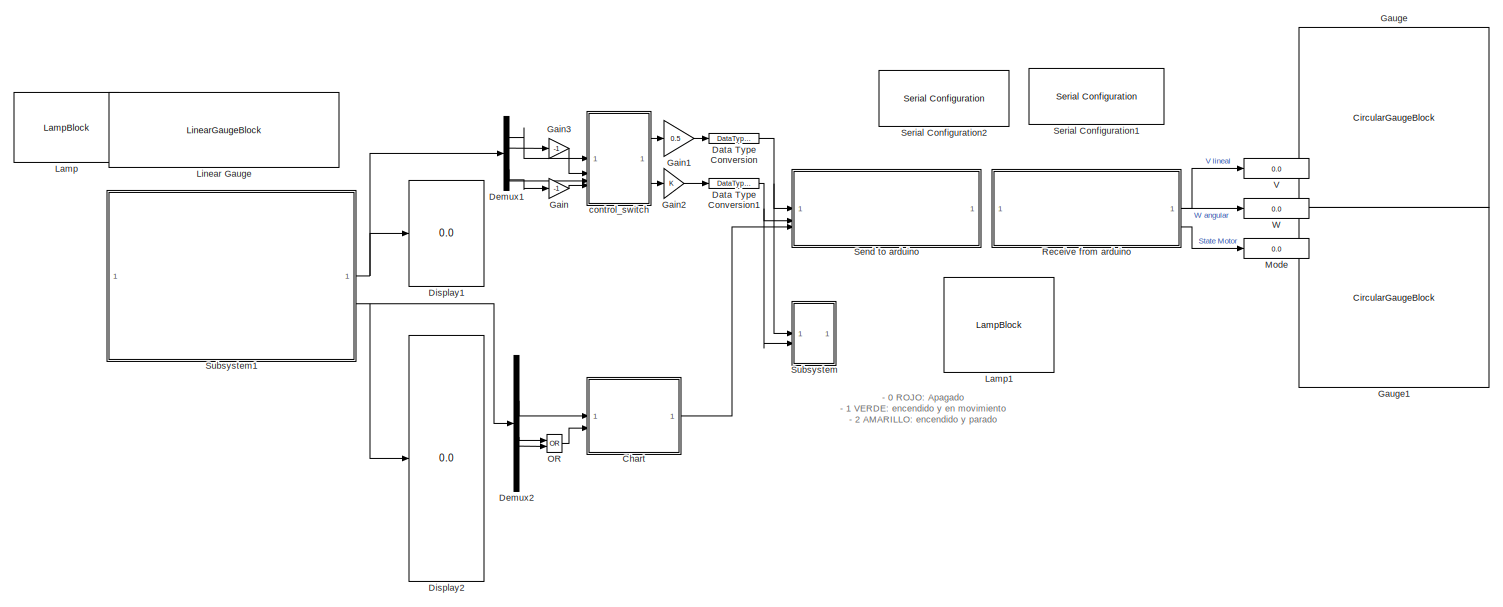
[diagram: root canvas - part 1/2, full width, top band]
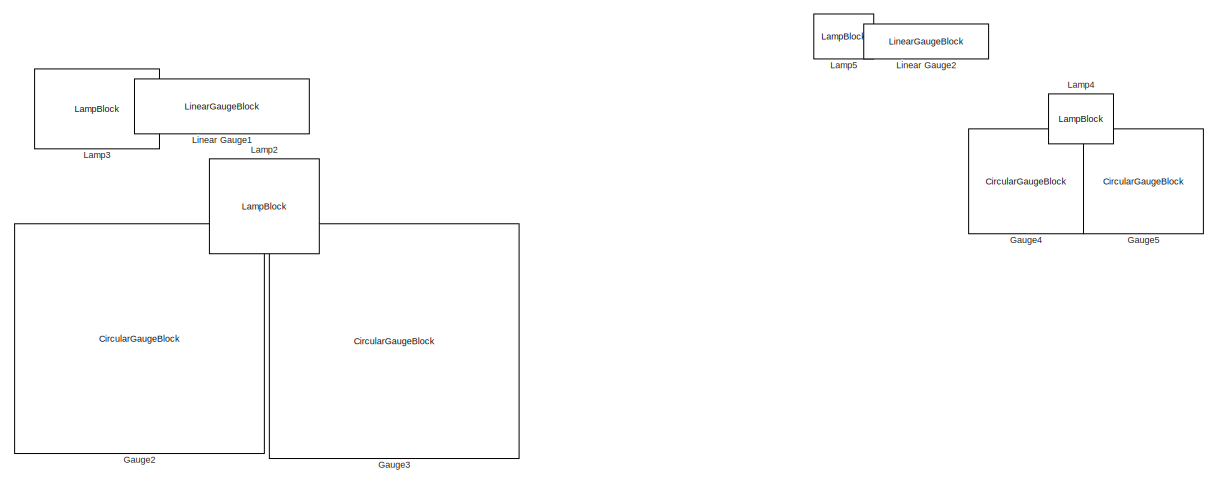
[diagram: root canvas - part 2/2, bottom right region]
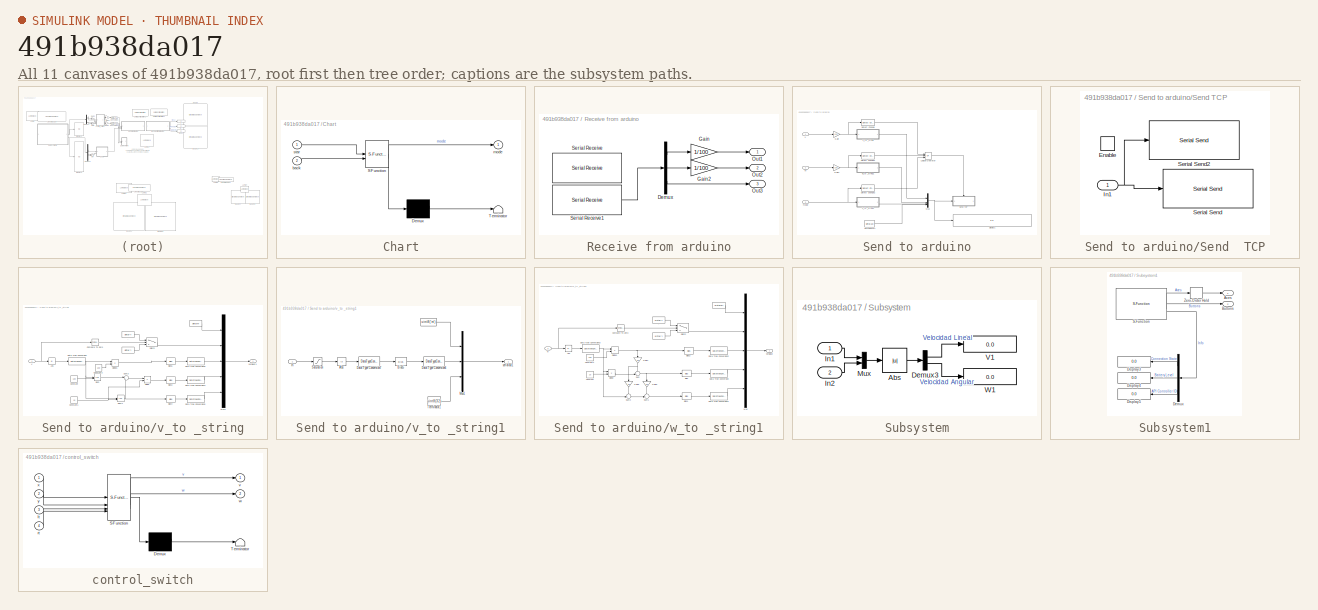
[diagram: thumbnail index - all 11 canvases of the model, root first then tree order]
MODEL slx_491b938da017
KIND model
CONFIG AbsTol = auto
CONFIG EnableMultiTasking = off
CONFIG FixedStep = 0.01
CONFIG InitFcn = Ts=0.01;
CONFIG MaxStep = 0.01
CONFIG MinStep = auto
CONFIG RelTol = 1e-3
CONFIG SampleTimeConstraint = Unconstrained
CONFIG SolverName = FixedStepDiscrete
CONFIG StartTime = 0.0
CONFIG StopTime = inf
BLOCK [SubSystem] Chart
  ErrorFcn = Stateflow.Translate.translate
  PermitHierarchicalResolution = ExplicitOnly
  SFBlockType = Chart
  TreatAsAtomicUnit = on
BLOCK [Demux] Chart/ Demux 
  Outputs = 1
BLOCK [S-Function] Chart/ SFunction 
  EnableBusSupport = on
  FunctionName = sf_sfun
  PortCounts = [2 2]
  SFcnIsStateOwnerBlock = off
  SFunctionDeploymentMode = off
  Tag = Stateflow S-Function 1
BLOCK [Terminator] Chart/ Terminator 
BLOCK [Inport] Chart/back
  Port = 2
BLOCK [Outport] Chart/mode
BLOCK [Inport] Chart/star
BLOCK [DataTypeConversion] Data Type Conversion
  OutDataTypeStr = single
  RndMeth = Floor
  SaturateOnIntegerOverflow = off
BLOCK [DataTypeConversion] Data Type Conversion1
  OutDataTypeStr = single
  RndMeth = Floor
  SaturateOnIntegerOverflow = off
BLOCK [Demux] Demux1
  Outputs = 6
BLOCK [Demux] Demux2
  Outputs = 14
BLOCK [Display] Display1
  Decimation = 1
BLOCK [Display] Display2
  Decimation = 1
BLOCK [Gain] Gain
  Gain = -1
BLOCK [Gain] Gain1
  Gain = 0.5
BLOCK [Gain] Gain2
BLOCK [Gain] Gain3
  Gain = -1
BLOCK [CircularGaugeBlock] Gauge
  ScaleMax = 2
BLOCK [CircularGaugeBlock] Gauge1
  ScaleMax = 1.2
BLOCK [CircularGaugeBlock] Gauge2
  ScaleMax = 2
BLOCK [CircularGaugeBlock] Gauge3
  ScaleMax = 1.2
BLOCK [CircularGaugeBlock] Gauge4
  ScaleMax = 2
BLOCK [CircularGaugeBlock] Gauge5
  ScaleMax = 1.2
BLOCK [LampBlock] Lamp
BLOCK [LampBlock] Lamp1
BLOCK [LampBlock] Lamp2
BLOCK [LampBlock] Lamp3
BLOCK [LampBlock] Lamp4
BLOCK [LampBlock] Lamp5
BLOCK [LinearGaugeBlock] Linear Gauge
  TickInterval = 25
BLOCK [LinearGaugeBlock] Linear Gauge1
  TickInterval = 25
BLOCK [LinearGaugeBlock] Linear Gauge2
  TickInterval = 25
BLOCK [Display] Mode
  Decimation = 1
BLOCK [Logic] OR
  AllPortsSameDT = off
  IconShape = distinctive
  Operator = OR
  OutDataTypeStr = boolean
BLOCK [SubSystem] Receive from arduino
BLOCK [Demux] Receive from arduino/Demux
  Outputs = 3
BLOCK [Gain] Receive from arduino/Gain
  Gain = 1/100
BLOCK [Gain] Receive from arduino/Gain2
  Gain = 1/100
BLOCK [Outport] Receive from arduino/Out1
BLOCK [Outport] Receive from arduino/Out2
  Port = 2
BLOCK [Outport] Receive from arduino/Out3
  Port = 3
BLOCK [Reference] Receive from arduino/Serial Receive  REF=instrumentseriallib/Serial Receive
  Commented = on
  LibrarySourceBlock = instrumentlib/Serial Receive
  SourceBlock = instrumentseriallib/Serial Receive
  SourceType = system.SerialReceive
BLOCK [Reference] Receive from arduino/Serial Receive1  REF=instrumentseriallib/Serial Receive
  LibrarySourceBlock = instrumentlib/Serial Receive
  SourceBlock = instrumentseriallib/Serial Receive
  SourceType = system.SerialReceive
BLOCK [SubSystem] Send to arduino
BLOCK [Reference] Send to arduino/Detect Change  REF=simulink/Logic and Bit
Operations/Detect
Change
  SourceBlock = simulink/Logic and Bit\nOperations/Detect\nChange
  SourceType = Detect Change
BLOCK [Reference] Send to arduino/Detect Change1  REF=simulink/Logic and Bit
Operations/Detect
Change
  SourceBlock = simulink/Logic and Bit\nOperations/Detect\nChange
  SourceType = Detect Change
BLOCK [Reference] Send to arduino/Detect Change2  REF=simulink/Logic and Bit
Operations/Detect
Change
  SourceBlock = simulink/Logic and Bit\nOperations/Detect\nChange
  SourceType = Detect Change
BLOCK [Display] Send to arduino/Display1
  Decimation = 1
BLOCK [Gain] Send to arduino/Gain
  Gain = 100
BLOCK [Gain] Send to arduino/Gain1
  Gain = 100
BLOCK [Logic] Send to arduino/Logical Operator
  AllPortsSameDT = off
  Inputs = 3
  Operator = OR
  OutDataTypeStr = boolean
BLOCK [Mux] Send to arduino/Mux
  DisplayOption = bar
BLOCK [SubSystem] Send to arduino/Send  TCP
  TreatAsAtomicUnit = on
BLOCK [EnablePort] Send to arduino/Send  TCP/Enable
BLOCK [Inport] Send to arduino/Send  TCP/In1
BLOCK [Reference] Send to arduino/Send  TCP/Serial Send  REF=instrumentseriallib/Serial Send
  Commented = on
  LibrarySourceBlock = instrumentlib/Serial Send
  SourceBlock = instrumentseriallib/Serial Send
  SourceType = system.SerialSend
BLOCK [Reference] Send to arduino/Send  TCP/Serial Send2  REF=instrumentseriallib/Serial Send
  LibrarySourceBlock = instrumentlib/Serial Send
  SourceBlock = instrumentseriallib/Serial Send
  SourceType = system.SerialSend
BLOCK [Constant] Send to arduino/Terminator1
  Value = uint8(10)
BLOCK [Inport] Send to arduino/V
BLOCK [Inport] Send to arduino/W
  Port = 2
BLOCK [Inport] Send to arduino/mode
  Port = 3
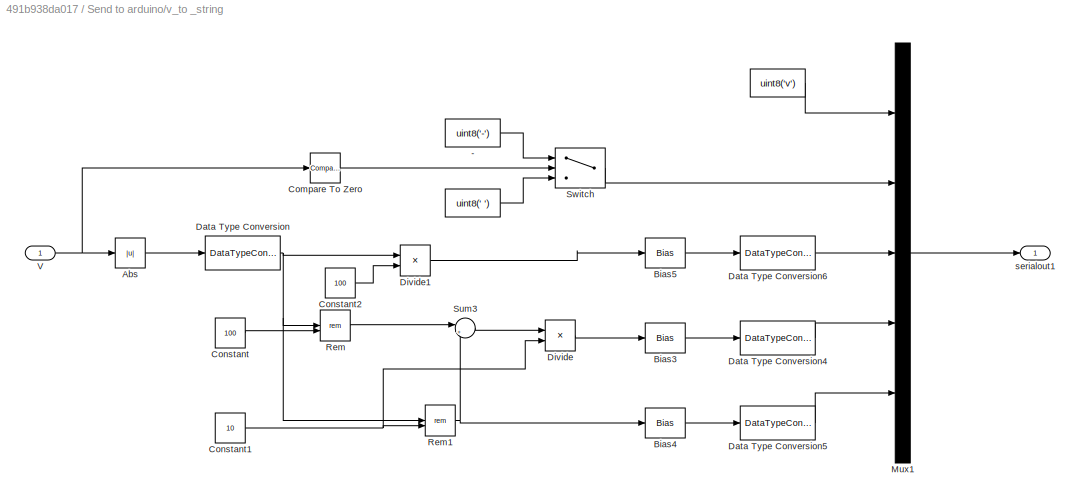
BLOCK [SubSystem] Send to arduino/v_to _string
BLOCK [Constant] Send to arduino/v_to _string/     
  NameLocation = top
  Value = uint8(' ')
BLOCK [Constant] Send to arduino/v_to _string/       
  NameLocation = top
  Value = uint8('v')
BLOCK [Constant] Send to arduino/v_to _string/  -
  NameLocation = top
  Value = uint8('-')
BLOCK [Abs] Send to arduino/v_to _string/Abs
  SaturateOnIntegerOverflow = off
BLOCK [Bias] Send to arduino/v_to _string/Bias3
  Bias = 48
  SaturateOnIntegerOverflow = off
BLOCK [Bias] Send to arduino/v_to _string/Bias4
  Bias = 48
  SaturateOnIntegerOverflow = off
BLOCK [Bias] Send to arduino/v_to _string/Bias5
  Bias = 48
  SaturateOnIntegerOverflow = off
BLOCK [Reference] Send to arduino/v_to _string/Compare To Zero  REF=simulink/Logic and Bit
Operations/Compare
To Zero
  SourceBlock = simulink/Logic and Bit\nOperations/Compare\nTo Zero
  SourceType = Compare To Zero
BLOCK [Constant] Send to arduino/v_to _string/Constant
  OutDataTypeStr = uint16
  Value = 100
BLOCK [Constant] Send to arduino/v_to _string/Constant1
  OutDataTypeStr = uint16
  Value = 10
BLOCK [Constant] Send to arduino/v_to _string/Constant2
  OutDataTypeStr = uint16
  Value = 100
BLOCK [DataTypeConversion] Send to arduino/v_to _string/Data Type Conversion
  OutDataTypeStr = uint16
  RndMeth = Floor
  SaturateOnIntegerOverflow = off
BLOCK [DataTypeConversion] Send to arduino/v_to _string/Data Type Conversion4
  OutDataTypeStr = uint8
  RndMeth = Floor
  SaturateOnIntegerOverflow = off
BLOCK [DataTypeConversion] Send to arduino/v_to _string/Data Type Conversion5
  OutDataTypeStr = uint8
  RndMeth = Floor
  SaturateOnIntegerOverflow = off
BLOCK [DataTypeConversion] Send to arduino/v_to _string/Data Type Conversion6
  OutDataTypeStr = uint8
  RndMeth = Floor
  SaturateOnIntegerOverflow = off
BLOCK [Product] Send to arduino/v_to _string/Divide
  Inputs = */
BLOCK [Product] Send to arduino/v_to _string/Divide1
  Inputs = */
BLOCK [Mux] Send to arduino/v_to _string/Mux1
  DisplayOption = bar
  Inputs = 5
BLOCK [Math] Send to arduino/v_to _string/Rem
  Operator = rem
BLOCK [Math] Send to arduino/v_to _string/Rem1
  Operator = rem
BLOCK [Sum] Send to arduino/v_to _string/Sum3
  Inputs = |+-
BLOCK [Switch] Send to arduino/v_to _string/Switch
  Criteria = u2 > Threshold
  InputSameDT = off
  SaturateOnIntegerOverflow = off
BLOCK [Inport] Send to arduino/v_to _string/V
BLOCK [Outport] Send to arduino/v_to _string/serialout1
BLOCK [SubSystem] Send to arduino/v_to _string1
BLOCK [Constant] Send to arduino/v_to _string1/       
  NameLocation = top
  Value = uint8('m')
BLOCK [Abs] Send to arduino/v_to _string1/Abs
  SaturateOnIntegerOverflow = off
BLOCK [Bias] Send to arduino/v_to _string1/Bias5
  Bias = 48
  SaturateOnIntegerOverflow = off
BLOCK [DataTypeConversion] Send to arduino/v_to _string1/Data Type Conversion6
  OutDataTypeStr = uint8
  RndMeth = Floor
  SaturateOnIntegerOverflow = off
BLOCK [DataTypeConversion] Send to arduino/v_to _string1/Data Type Conversion7
  OutDataTypeStr = uint8
  RndMeth = Floor
  SaturateOnIntegerOverflow = off
BLOCK [Mux] Send to arduino/v_to _string1/Mux1
  DisplayOption = bar
  Inputs = 3
BLOCK [Saturate] Send to arduino/v_to _string1/Saturation
  LowerLimit = 0
  UpperLimit = 1
BLOCK [Constant] Send to arduino/v_to _string1/Terminator1
  Value = uint8(32)
BLOCK [Inport] Send to arduino/v_to _string1/m
BLOCK [Outport] Send to arduino/v_to _string1/serialout1
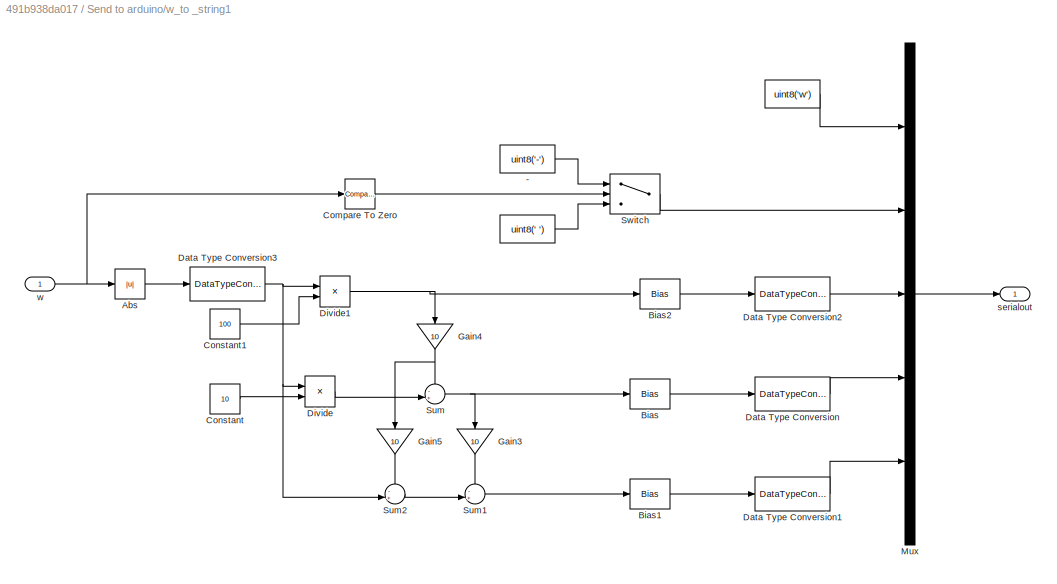
BLOCK [SubSystem] Send to arduino/w_to _string1
BLOCK [Constant] Send to arduino/w_to _string1/  
  NameLocation = top
  Value = uint8('w')
BLOCK [Constant] Send to arduino/w_to _string1/     
  NameLocation = top
  Value = uint8(' ')
BLOCK [Constant] Send to arduino/w_to _string1/  -
  NameLocation = top
  Value = uint8('-')
BLOCK [Abs] Send to arduino/w_to _string1/Abs
  SaturateOnIntegerOverflow = off
BLOCK [Bias] Send to arduino/w_to _string1/Bias
  Bias = 48
  SaturateOnIntegerOverflow = off
BLOCK [Bias] Send to arduino/w_to _string1/Bias1
  Bias = 48
  SaturateOnIntegerOverflow = off
BLOCK [Bias] Send to arduino/w_to _string1/Bias2
  Bias = 48
  SaturateOnIntegerOverflow = off
BLOCK [Reference] Send to arduino/w_to _string1/Compare To Zero  REF=simulink/Logic and Bit
Operations/Compare
To Zero
  SourceBlock = simulink/Logic and Bit\nOperations/Compare\nTo Zero
  SourceType = Compare To Zero
BLOCK [Constant] Send to arduino/w_to _string1/Constant
  OutDataTypeStr = int16
  Value = 10
BLOCK [Constant] Send to arduino/w_to _string1/Constant1
  OutDataTypeStr = int16
  Value = 100
BLOCK [DataTypeConversion] Send to arduino/w_to _string1/Data Type Conversion
  OutDataTypeStr = uint8
  RndMeth = Floor
  SaturateOnIntegerOverflow = off
BLOCK [DataTypeConversion] Send to arduino/w_to _string1/Data Type Conversion1
  OutDataTypeStr = uint8
  RndMeth = Floor
  SaturateOnIntegerOverflow = off
BLOCK [DataTypeConversion] Send to arduino/w_to _string1/Data Type Conversion2
  OutDataTypeStr = uint8
  RndMeth = Floor
  SaturateOnIntegerOverflow = off
BLOCK [DataTypeConversion] Send to arduino/w_to _string1/Data Type Conversion3
  OutDataTypeStr = uint16
  RndMeth = Floor
  SaturateOnIntegerOverflow = off
BLOCK [Product] Send to arduino/w_to _string1/Divide
  Inputs = */
BLOCK [Product] Send to arduino/w_to _string1/Divide1
  Inputs = */
BLOCK [Gain] Send to arduino/w_to _string1/Gain3
  Gain = 10
  NameLocation = left
BLOCK [Gain] Send to arduino/w_to _string1/Gain4
  Gain = 10
  NameLocation = left
BLOCK [Gain] Send to arduino/w_to _string1/Gain5
  Gain = 10
  NameLocation = left
BLOCK [Mux] Send to arduino/w_to _string1/Mux
  DisplayOption = bar
  Inputs = 5
BLOCK [Sum] Send to arduino/w_to _string1/Sum
  Inputs = -+|
BLOCK [Sum] Send to arduino/w_to _string1/Sum1
  Inputs = -+|
BLOCK [Sum] Send to arduino/w_to _string1/Sum2
  Inputs = -+|
BLOCK [Switch] Send to arduino/w_to _string1/Switch
  Criteria = u2 > Threshold
  InputSameDT = off
  SaturateOnIntegerOverflow = off
BLOCK [Outport] Send to arduino/w_to _string1/serialout
  OutDataTypeStr = uint8
BLOCK [Inport] Send to arduino/w_to _string1/w
BLOCK [Reference] Serial Configuration1  REF=instrumentseriallib/Serial Configuration
  Commented = on
  LibrarySourceBlock = instrumentlib/Serial Configuration
  Priority = -200000
  SourceBlock = instrumentseriallib/Serial Configuration
  SourceType = system.SerialConfiguration
BLOCK [Reference] Serial Configuration2  REF=instrumentseriallib/Serial Configuration
  LibrarySourceBlock = instrumentlib/Serial Configuration
  Priority = -200000
  SourceBlock = instrumentseriallib/Serial Configuration
  SourceType = system.SerialConfiguration
BLOCK [SubSystem] Subsystem
BLOCK [Abs] Subsystem/Abs
  SaturateOnIntegerOverflow = off
BLOCK [Demux] Subsystem/Demux3
  Outputs = 2
BLOCK [Inport] Subsystem/In1
BLOCK [Inport] Subsystem/In2
  Port = 2
BLOCK [Mux] Subsystem/Mux
  DisplayOption = bar
  Inputs = 2
BLOCK [Display] Subsystem/V1
  Decimation = 1
BLOCK [Display] Subsystem/W1
  Decimation = 1
BLOCK [SubSystem] Subsystem1
BLOCK [Outport] Subsystem1/Axes
BLOCK [Outport] Subsystem1/Buttons
  Port = 2
BLOCK [Demux] Subsystem1/Demux
  Outputs = 3
BLOCK [Display] Subsystem1/Display3
  Decimation = 1
BLOCK [Display] Subsystem1/Display4
  Decimation = 1
BLOCK [Display] Subsystem1/Display5
  Decimation = 1
BLOCK [S-Function] Subsystem1/S-Function
  EnableBusSupport = off
  FunctionName = XInput_Controller_SFun
  Parameters = ControllerID
  SFcnIsStateOwnerBlock = off
  SFunctionDeploymentMode = off
  UserDataPersistent = on
BLOCK [ZeroOrderHold] Subsystem1/Zero-Order Hold
  SampleTime = -1
BLOCK [Display] V
  Decimation = 1
BLOCK [Display] W
  Decimation = 1
BLOCK [SubSystem] control_switch
  ErrorFcn = Stateflow.Translate.translate
  PermitHierarchicalResolution = ExplicitOnly
  SFBlockType = MATLAB Function
  TreatAsAtomicUnit = on
BLOCK [Demux] control_switch/ Demux 
  Outputs = 1
BLOCK [S-Function] control_switch/ SFunction 
  EnableBusSupport = on
  FunctionName = sf_sfun
  PortCounts = [4 3]
  SFcnIsStateOwnerBlock = off
  SFunctionDeploymentMode = off
  Tag = Stateflow S-Function 2
BLOCK [Terminator] control_switch/ Terminator 
BLOCK [Inport] control_switch/lt
  Port = 3
BLOCK [Inport] control_switch/rt
  Port = 4
BLOCK [Outport] control_switch/v
BLOCK [Outport] control_switch/w
  Port = 2
BLOCK [Inport] control_switch/x
BLOCK [Inport] control_switch/y
  Port = 2
ANNOTATION (root): - 0 ROJO : Apagado - 1 VERDE : encendido y en movimiento - 2 AMARILLO : encendido y parado
LINE Chart:1 -> Send to arduino:3
NET Data Type Conversion1:1 -> Send to arduino:2, Subsystem:2
NET Data Type Conversion:1 -> Send to arduino:1, Subsystem:1
LINE Demux1:2 -> control_switch:1
LINE Demux1:3 -> Gain3:1
LINE Demux1:5 -> control_switch:3
LINE Demux1:6 -> Gain:1
LINE Demux2:10 -> OR:2
LINE Demux2:5 -> Chart:1
LINE Demux2:9 -> OR:1
LINE Gain1:1 -> Data Type Conversion:1
LINE Gain2:1 -> Data Type Conversion1:1
LINE Gain3:1 -> control_switch:2
LINE Gain:1 -> control_switch:4
LINE OR:1 -> Chart:2
LINE Receive from arduino/Demux:1 -> Receive from arduino/Gain:1
LINE Receive from arduino/Demux:2 -> Receive from arduino/Gain2:1
LINE Receive from arduino/Demux:3 -> Receive from arduino/Out3:1
LINE Receive from arduino/Gain2:1 -> Receive from arduino/Out2:1
LINE Receive from arduino/Gain:1 -> Receive from arduino/Out1:1
LINE Receive from arduino/Serial Receive1:1 -> Receive from arduino/Demux:1
LINE Receive from arduino:1 -> V:1
LINE Receive from arduino:2 -> W:1
LINE Receive from arduino:3 -> Mode:1
LINE Send to arduino/Detect Change1:1 -> Send to arduino/Logical Operator:2
LINE Send to arduino/Detect Change2:1 -> Send to arduino/Logical Operator:3
LINE Send to arduino/Detect Change:1 -> Send to arduino/Logical Operator:1
NET Send to arduino/Gain1:1 -> Send to arduino/Detect Change1:1, Send to arduino/w_to _string1:1
NET Send to arduino/Gain:1 -> Send to arduino/Detect Change:1, Send to arduino/v_to _string:1
LINE Send to arduino/Logical Operator:1 -> Send to arduino/Send  TCP:enable
NET Send to arduino/Mux:1 -> Send to arduino/Display1:1, Send to arduino/Send  TCP:1
NET Send to arduino/Send  TCP/In1:1 -> Send to arduino/Send  TCP/Serial Send2:1, Send to arduino/Send  TCP/Serial Send:1
LINE Send to arduino/Terminator1:1 -> Send to arduino/Mux:4
LINE Send to arduino/V:1 -> Send to arduino/Gain:1
LINE Send to arduino/W:1 -> Send to arduino/Gain1:1
NET Send to arduino/mode:1 -> Send to arduino/Detect Change2:1, Send to arduino/v_to _string1:1
LINE Send to arduino/v_to _string/       :1 -> Send to arduino/v_to _string/Mux1:1
LINE Send to arduino/v_to _string/     :1 -> Send to arduino/v_to _string/Switch:3
LINE Send to arduino/v_to _string/  -:1 -> Send to arduino/v_to _string/Switch:1
LINE Send to arduino/v_to _string/Abs:1 -> Send to arduino/v_to _string/Data Type Conversion:1
LINE Send to arduino/v_to _string/Bias3:1 -> Send to arduino/v_to _string/Data Type Conversion4:1
LINE Send to arduino/v_to _string/Bias4:1 -> Send to arduino/v_to _string/Data Type Conversion5:1
LINE Send to arduino/v_to _string/Bias5:1 -> Send to arduino/v_to _string/Data Type Conversion6:1
LINE Send to arduino/v_to _string/Compare To Zero:1 -> Send to arduino/v_to _string/Switch:2
NET Send to arduino/v_to _string/Constant1:1 -> Send to arduino/v_to _string/Divide:2, Send to arduino/v_to _string/Rem1:2
LINE Send to arduino/v_to _string/Constant2:1 -> Send to arduino/v_to _string/Divide1:2
LINE Send to arduino/v_to _string/Constant:1 -> Send to arduino/v_to _string/Rem:2
LINE Send to arduino/v_to _string/Data Type Conversion4:1 -> Send to arduino/v_to _string/Mux1:4
LINE Send to arduino/v_to _string/Data Type Conversion5:1 -> Send to arduino/v_to _string/Mux1:5
LINE Send to arduino/v_to _string/Data Type Conversion6:1 -> Send to arduino/v_to _string/Mux1:3
NET Send to arduino/v_to _string/Data Type Conversion:1 -> Send to arduino/v_to _string/Divide1:1, Send to arduino/v_to _string/Rem1:1, Send to arduino/v_to _string/Rem:1
LINE Send to arduino/v_to _string/Divide1:1 -> Send to arduino/v_to _string/Bias5:1
LINE Send to arduino/v_to _string/Divide:1 -> Send to arduino/v_to _string/Bias3:1
LINE Send to arduino/v_to _string/Mux1:1 -> Send to arduino/v_to _string/serialout1:1
NET Send to arduino/v_to _string/Rem1:1 -> Send to arduino/v_to _string/Bias4:1, Send to arduino/v_to _string/Sum3:2
LINE Send to arduino/v_to _string/Rem:1 -> Send to arduino/v_to _string/Sum3:1
LINE Send to arduino/v_to _string/Sum3:1 -> Send to arduino/v_to _string/Divide:1
LINE Send to arduino/v_to _string/Switch:1 -> Send to arduino/v_to _string/Mux1:2
NET Send to arduino/v_to _string/V:1 -> Send to arduino/v_to _string/Abs:1, Send to arduino/v_to _string/Compare To Zero:1
LINE Send to arduino/v_to _string1/       :1 -> Send to arduino/v_to _string1/Mux1:1
LINE Send to arduino/v_to _string1/Abs:1 -> Send to arduino/v_to _string1/Data Type Conversion7:1
LINE Send to arduino/v_to _string1/Bias5:1 -> Send to arduino/v_to _string1/Data Type Conversion6:1
LINE Send to arduino/v_to _string1/Data Type Conversion6:1 -> Send to arduino/v_to _string1/Mux1:2
LINE Send to arduino/v_to _string1/Data Type Conversion7:1 -> Send to arduino/v_to _string1/Bias5:1
LINE Send to arduino/v_to _string1/Mux1:1 -> Send to arduino/v_to _string1/serialout1:1
LINE Send to arduino/v_to _string1/Saturation:1 -> Send to arduino/v_to _string1/Abs:1
LINE Send to arduino/v_to _string1/Terminator1:1 -> Send to arduino/v_to _string1/Mux1:3
LINE Send to arduino/v_to _string1/m:1 -> Send to arduino/v_to _string1/Saturation:1
LINE Send to arduino/v_to _string1:1 -> Send to arduino/Mux:3
LINE Send to arduino/v_to _string:1 -> Send to arduino/Mux:1
LINE Send to arduino/w_to _string1/     :1 -> Send to arduino/w_to _string1/Switch:3
LINE Send to arduino/w_to _string1/  -:1 -> Send to arduino/w_to _string1/Switch:1
LINE Send to arduino/w_to _string1/  :1 -> Send to arduino/w_to _string1/Mux:1
LINE Send to arduino/w_to _string1/Abs:1 -> Send to arduino/w_to _string1/Data Type Conversion3:1
LINE Send to arduino/w_to _string1/Bias1:1 -> Send to arduino/w_to _string1/Data Type Conversion1:1
LINE Send to arduino/w_to _string1/Bias2:1 -> Send to arduino/w_to _string1/Data Type Conversion2:1
LINE Send to arduino/w_to _string1/Bias:1 -> Send to arduino/w_to _string1/Data Type Conversion:1
LINE Send to arduino/w_to _string1/Compare To Zero:1 -> Send to arduino/w_to _string1/Switch:2
LINE Send to arduino/w_to _string1/Constant1:1 -> Send to arduino/w_to _string1/Divide1:2
LINE Send to arduino/w_to _string1/Constant:1 -> Send to arduino/w_to _string1/Divide:2
LINE Send to arduino/w_to _string1/Data Type Conversion1:1 -> Send to arduino/w_to _string1/Mux:5
LINE Send to arduino/w_to _string1/Data Type Conversion2:1 -> Send to arduino/w_to _string1/Mux:3
NET Send to arduino/w_to _string1/Data Type Conversion3:1 -> Send to arduino/w_to _string1/Divide1:1, Send to arduino/w_to _string1/Divide:1, Send to arduino/w_to _string1/Sum2:2
LINE Send to arduino/w_to _string1/Data Type Conversion:1 -> Send to arduino/w_to _string1/Mux:4
NET Send to arduino/w_to _string1/Divide1:1 -> Send to arduino/w_to _string1/Bias2:1, Send to arduino/w_to _string1/Gain4:1
LINE Send to arduino/w_to _string1/Divide:1 -> Send to arduino/w_to _string1/Sum:2
LINE Send to arduino/w_to _string1/Gain3:1 -> Send to arduino/w_to _string1/Sum1:1
NET Send to arduino/w_to _string1/Gain4:1 -> Send to arduino/w_to _string1/Gain5:1, Send to arduino/w_to _string1/Sum:1
LINE Send to arduino/w_to _string1/Gain5:1 -> Send to arduino/w_to _string1/Sum2:1
LINE Send to arduino/w_to _string1/Mux:1 -> Send to arduino/w_to _string1/serialout:1
LINE Send to arduino/w_to _string1/Sum1:1 -> Send to arduino/w_to _string1/Bias1:1
LINE Send to arduino/w_to _string1/Sum2:1 -> Send to arduino/w_to _string1/Sum1:2
NET Send to arduino/w_to _string1/Sum:1 -> Send to arduino/w_to _string1/Bias:1, Send to arduino/w_to _string1/Gain3:1
LINE Send to arduino/w_to _string1/Switch:1 -> Send to arduino/w_to _string1/Mux:2
NET Send to arduino/w_to _string1/w:1 -> Send to arduino/w_to _string1/Abs:1, Send to arduino/w_to _string1/Compare To Zero:1
LINE Send to arduino/w_to _string1:1 -> Send to arduino/Mux:2
LINE Subsystem/Abs:1 -> Subsystem/Demux3:1
LINE Subsystem/Demux3:1 -> Subsystem/V1:1
LINE Subsystem/Demux3:2 -> Subsystem/W1:1
LINE Subsystem/In1:1 -> Subsystem/Mux:1
LINE Subsystem/In2:1 -> Subsystem/Mux:2
LINE Subsystem/Mux:1 -> Subsystem/Abs:1
LINE Subsystem1/Demux:1 -> Subsystem1/Display3:1
LINE Subsystem1/Demux:2 -> Subsystem1/Display4:1
LINE Subsystem1/Demux:3 -> Subsystem1/Display5:1
LINE Subsystem1/S-Function:1 -> Subsystem1/Zero-Order Hold:1
LINE Subsystem1/S-Function:2 -> Subsystem1/Buttons:1
LINE Subsystem1/S-Function:3 -> Subsystem1/Demux:1
LINE Subsystem1/Zero-Order Hold:1 -> Subsystem1/Axes:1
NET Subsystem1:1 -> Demux1:1, Display1:1
NET Subsystem1:2 -> Demux2:1, Display2:1
LINE control_switch:1 -> Gain1:1
LINE control_switch:2 -> Gain2:1
note: NET lines group one-source signal fan-out (src -> all destinations, sorted); 1:1 wires keep LINE
CHART Chart states=2 transitions=3
  STATE_LABEL 'ON\nentry: mode=1;'
  STATE_LABEL 'OFF\nentry: mode=0;'
CHART control_switch states=1 transitions=1
  STATE_LABEL 'eML_blk_kernel()'
  STATE_LABEL 'SCRIPT:\nfunction [v,w]=fcn(x,y,lt,rt)\n\n    if (rt==0) && (lt==0) && ((x>=0.3) || (x<=-0.3))\n        v=x;\n        w=y;\n    elseif (x~=0) && ((rt~=0) || (lt~=0))\n        w=0;\n        v=0;\n    elseif (x==0) && (y==0) && (rt==0) && (lt~=0)\n        w=lt;\n        v=0;\n    elseif (x==0) && (y==0) && (lt==0) && (rt~=0)\n        w=rt;\n        v=0;\n    elseif (lt~=0) && (rt~=0)\n        w=0;\n        v=0;\n    ...<+107ch>'
CHART  states=0 transitions=0
CHART  states=0 transitions=0
